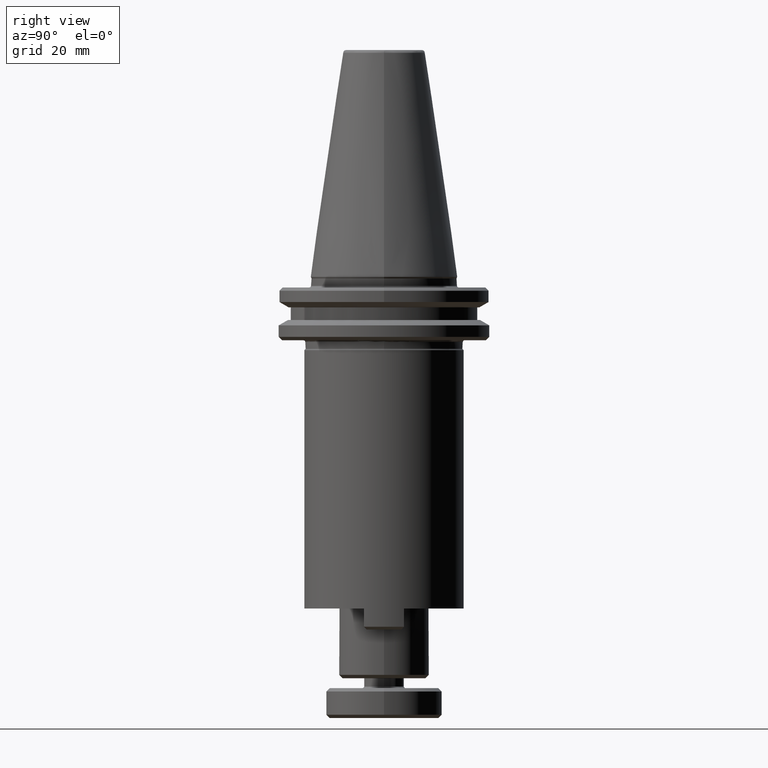
[diagram: clean part render]
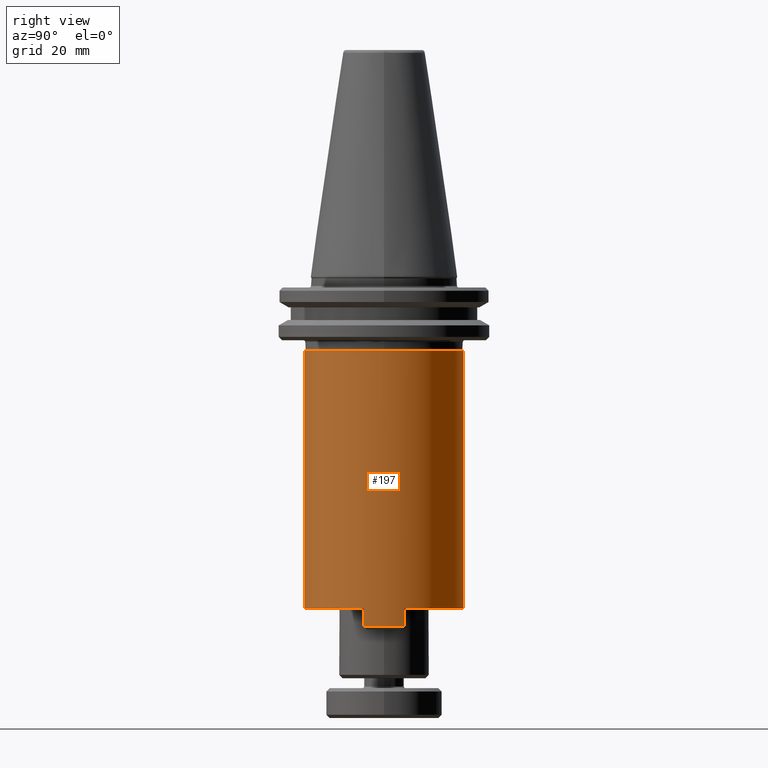
[diagram: same view with one face highlighted and labeled with its STEP entity id]
A machine part, right view. The second image highlights one B-rep face of the part: STEP entity #197.
In plain terms, the highlighted cylindrical surface (partial cylindrical patch) has radius 24 mm, axis along (0, 0, 1).
Its self-contained STEP definition (entity closure, byte-faithful):
#17 = AXIS2_PLACEMENT_3D ( 'NONE', #1646, #661, #429 ) ;
#91 = ORIENTED_EDGE ( 'NONE', *, *, #2642, .T. ) ;
#103 = CARTESIAN_POINT ( 'NONE',  ( 71.81983096143052600, 87.85641994208592100, -11.28401357644060200 ) ) ;
#108 = DIRECTION ( 'NONE',  ( 0.0000000000000000000, 1.000000000000000000, 0.0000000000000000000 ) ) ;
#113 = VERTEX_POINT ( 'NONE', #1525 ) ;
#123 = CIRCLE ( 'NONE', #17, 24.00000000000000700 ) ;
#152 = FACE_OUTER_BOUND ( 'NONE', #1174, .T. ) ;
#167 = DIRECTION ( 'NONE',  ( 1.000000000000000000, 0.0000000000000000000, 0.0000000000000000000 ) ) ;
#197 = ADVANCED_FACE ( 'NONE', ( #152 ), #2789, .T. ) ;
#198 = LINE ( 'NONE', #2226, #1657 ) ;
#211 = ORIENTED_EDGE ( 'NONE', *, *, #2531, .F. ) ;
#231 = DIRECTION ( 'NONE',  ( 1.000000000000000000, 0.0000000000000000000, 0.0000000000000000000 ) ) ;
#248 = CARTESIAN_POINT ( 'NONE',  ( 71.81983096143052600, 87.85641994208592100, 72.11598642355937700 ) ) ;
#279 = ORIENTED_EDGE ( 'NONE', *, *, #2422, .T. ) ;
#351 = EDGE_CURVE ( 'NONE', #2502, #1067, #674, .T. ) ;
#361 = ORIENTED_EDGE ( 'NONE', *, *, #2617, .T. ) ;
#429 = DIRECTION ( 'NONE',  ( 0.0000000000000000000, 1.000000000000000000, 0.0000000000000000000 ) ) ;
#450 = AXIS2_PLACEMENT_3D ( 'NONE', #248, #1256, #167 ) ;
#490 = AXIS2_PLACEMENT_3D ( 'NONE', #103, #619, #550 ) ;
#537 = VERTEX_POINT ( 'NONE', #2225 ) ;
#550 = DIRECTION ( 'NONE',  ( 0.0000000000000000000, 1.000000000000000000, 0.0000000000000000000 ) ) ;
#593 = CARTESIAN_POINT ( 'NONE',  ( 71.81983096143052600, 63.85641994208590700, -5.784013571440600500 ) ) ;
#619 = DIRECTION ( 'NONE',  ( 0.0000000000000000000, 0.0000000000000000000, 1.000000000000000000 ) ) ;
#622 = LINE ( 'NONE', #2717, #896 ) ;
#625 = DIRECTION ( 'NONE',  ( 0.0000000000000000000, 1.000000000000000000, 0.0000000000000000000 ) ) ;
#661 = DIRECTION ( 'NONE',  ( 0.0000000000000000000, 0.0000000000000000000, 1.000000000000000000 ) ) ;
#674 = CIRCLE ( 'NONE', #833, 23.99999999999999300 ) ;
#708 = DIRECTION ( 'NONE',  ( 0.0000000000000000000, 0.0000000000000000000, 1.000000000000000000 ) ) ;
#747 = ORIENTED_EDGE ( 'NONE', *, *, #1160, .T. ) ;
#755 = LINE ( 'NONE', #2178, #2768 ) ;
#798 = EDGE_CURVE ( 'NONE', #537, #1907, #1166, .T. ) ;
#799 = CARTESIAN_POINT ( 'NONE',  ( 71.81983096143052600, 87.85641994208592100, -5.784013571440600500 ) ) ;
#826 = VERTEX_POINT ( 'NONE', #2751 ) ;
#833 = AXIS2_PLACEMENT_3D ( 'NONE', #1231, #1201, #231 ) ;
#875 = AXIS2_PLACEMENT_3D ( 'NONE', #2672, #2756, #108 ) ;
#896 = VECTOR ( 'NONE', #2078, 1000.000000000000000 ) ;
#956 = CARTESIAN_POINT ( 'NONE',  ( 71.81983096143052600, 111.8564199420859200, -5.784013573940601600 ) ) ;
#984 = DIRECTION ( 'NONE',  ( 0.0000000000000000000, 0.0000000000000000000, 1.000000000000000000 ) ) ;
#1023 = VERTEX_POINT ( 'NONE', #2088 ) ;
#1029 = DIRECTION ( 'NONE',  ( 0.0000000000000000000, 1.000000000000000000, 0.0000000000000000000 ) ) ;
#1049 = ORIENTED_EDGE ( 'NONE', *, *, #2247, .T. ) ;
#1067 = VERTEX_POINT ( 'NONE', #2081 ) ;
#1149 = ORIENTED_EDGE ( 'NONE', *, *, #1745, .T. ) ;
#1160 = EDGE_CURVE ( 'NONE', #1023, #826, #198, .T. ) ;
#1163 = VERTEX_POINT ( 'NONE', #1705 ) ;
#1166 = CIRCLE ( 'NONE', #875, 24.00000000000000700 ) ;
#1174 = EDGE_LOOP ( 'NONE', ( #211, #361, #91, #1967, #1149, #747, #1049, #2289, #279, #1505 ) ) ;
#1179 = AXIS2_PLACEMENT_3D ( 'NONE', #799, #2269, #1029 ) ;
#1201 = DIRECTION ( 'NONE',  ( -0.0000000000000000000, 0.0000000000000000000, -1.000000000000000000 ) ) ;
#1221 = CARTESIAN_POINT ( 'NONE',  ( 95.81983096143051200, 87.85641994208592100, 72.11598642355937700 ) ) ;
#1231 = CARTESIAN_POINT ( 'NONE',  ( 71.81983096143052600, 87.85641994208592100, 72.11598642355937700 ) ) ;
#1256 = DIRECTION ( 'NONE',  ( -0.0000000000000000000, 0.0000000000000000000, -1.000000000000000000 ) ) ;
#1369 = CIRCLE ( 'NONE', #450, 23.99999999999999300 ) ;
#1435 = VECTOR ( 'NONE', #1972, 1000.000000000000000 ) ;
#1442 = CARTESIAN_POINT ( 'NONE',  ( 95.81983096143051200, 87.85641994208592100, -11.28401357644060500 ) ) ;
#1505 = ORIENTED_EDGE ( 'NONE', *, *, #351, .T. ) ;
#1525 = CARTESIAN_POINT ( 'NONE',  ( 95.05773103852701000, 81.85641994151264100, -5.784013573940600700 ) ) ;
#1544 = DIRECTION ( 'NONE',  ( 0.0000000000000000000, 0.0000000000000000000, 1.000000000000000000 ) ) ;
#1572 = VERTEX_POINT ( 'NONE', #956 ) ;
#1580 = CIRCLE ( 'NONE', #1945, 24.00000000000000700 ) ;
#1646 = CARTESIAN_POINT ( 'NONE',  ( 71.81983096143052600, 87.85641994208592100, -11.28401357644060500 ) ) ;
#1657 = VECTOR ( 'NONE', #708, 1000.000000000000000 ) ;
#1689 = LINE ( 'NONE', #2385, #1435 ) ;
#1705 = CARTESIAN_POINT ( 'NONE',  ( 71.81983096143052600, 111.8564199420859200, 72.11598642355937700 ) ) ;
#1742 = CARTESIAN_POINT ( 'NONE',  ( 71.81983096143052600, 87.85641994208592100, -5.784013573940601600 ) ) ;
#1745 = EDGE_CURVE ( 'NONE', #1907, #1023, #123, .T. ) ;
#1762 = EDGE_CURVE ( 'NONE', #1572, #1163, #755, .T. ) ;
#1907 = VERTEX_POINT ( 'NONE', #1442 ) ;
#1945 = AXIS2_PLACEMENT_3D ( 'NONE', #1742, #1544, #625 ) ;
#1967 = ORIENTED_EDGE ( 'NONE', *, *, #798, .T. ) ;
#1972 = DIRECTION ( 'NONE',  ( 0.0000000000000000000, 0.0000000000000000000, 1.000000000000000000 ) ) ;
#2078 = DIRECTION ( 'NONE',  ( -0.0000000000000000000, -0.0000000000000000000, -1.000000000000000000 ) ) ;
#2081 = CARTESIAN_POINT ( 'NONE',  ( 71.81983096143052600, 63.85641994208590700, 72.11598642355937700 ) ) ;
#2088 = CARTESIAN_POINT ( 'NONE',  ( 95.05773103775990800, 93.85641994475598400, -11.28401357665914700 ) ) ;
#2178 = CARTESIAN_POINT ( 'NONE',  ( 71.81983096143052600, 111.8564199420859200, -11.28401357644060200 ) ) ;
#2199 = VERTEX_POINT ( 'NONE', #593 ) ;
#2225 = CARTESIAN_POINT ( 'NONE',  ( 95.05773103873757200, 81.85641994127108500, -11.28401357617633500 ) ) ;
#2226 = CARTESIAN_POINT ( 'NONE',  ( 95.05773103726799900, 93.85641994753530100, -11.28401357644060200 ) ) ;
#2247 = EDGE_CURVE ( 'NONE', #826, #1572, #1580, .T. ) ;
#2269 = DIRECTION ( 'NONE',  ( 0.0000000000000000000, 0.0000000000000000000, 1.000000000000000000 ) ) ;
#2289 = ORIENTED_EDGE ( 'NONE', *, *, #1762, .T. ) ;
#2385 = CARTESIAN_POINT ( 'NONE',  ( 71.81983096143052600, 63.85641994208590700, -11.28401357644060200 ) ) ;
#2422 = EDGE_CURVE ( 'NONE', #1163, #2502, #1369, .T. ) ;
#2490 = CIRCLE ( 'NONE', #1179, 24.00000000000000700 ) ;
#2502 = VERTEX_POINT ( 'NONE', #1221 ) ;
#2531 = EDGE_CURVE ( 'NONE', #2199, #1067, #1689, .T. ) ;
#2617 = EDGE_CURVE ( 'NONE', #2199, #113, #2490, .T. ) ;
#2642 = EDGE_CURVE ( 'NONE', #113, #537, #622, .T. ) ;
#2672 = CARTESIAN_POINT ( 'NONE',  ( 71.81983096143052600, 87.85641994208592100, -11.28401357644060500 ) ) ;
#2717 = CARTESIAN_POINT ( 'NONE',  ( 95.05773103828835200, 81.85641994058836700, -11.28401357644060200 ) ) ;
#2751 = CARTESIAN_POINT ( 'NONE',  ( 95.05773103813641000, 93.85641994417201800, -5.784013573940600700 ) ) ;
#2756 = DIRECTION ( 'NONE',  ( 0.0000000000000000000, 0.0000000000000000000, 1.000000000000000000 ) ) ;
#2768 = VECTOR ( 'NONE', #984, 1000.000000000000000 ) ;
#2789 = CYLINDRICAL_SURFACE ( 'NONE', #490, 24.00000000000000700 ) ;